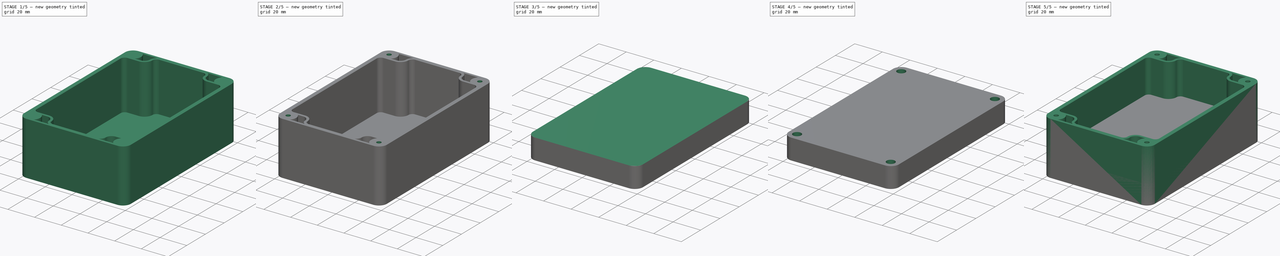
[diagram: build sequence overview — one tinted view per stage of 5, left to right]
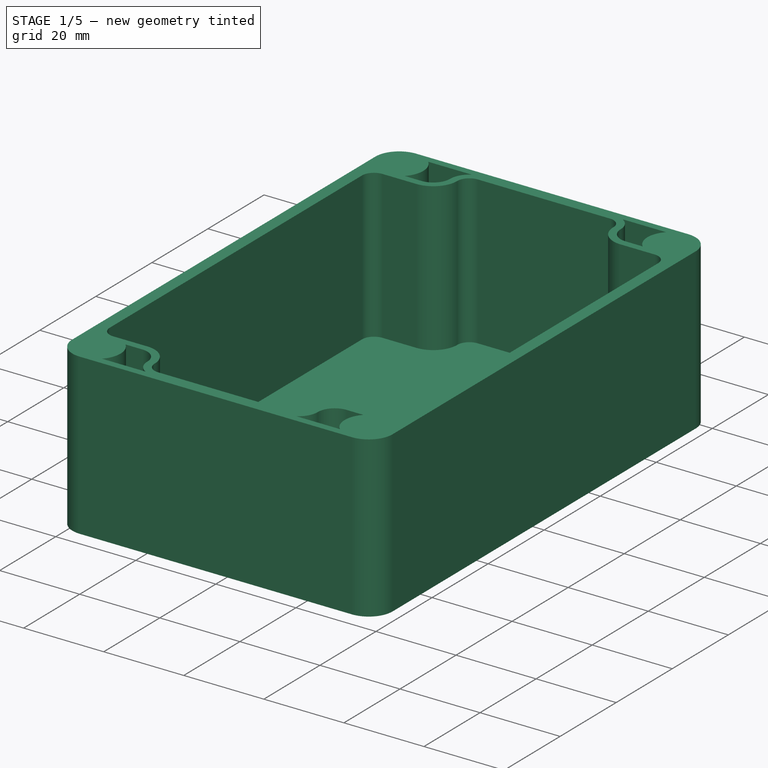
[diagram: stage 1 of 5 — iso view after this stage's code; geometry added in this stage tinted green]
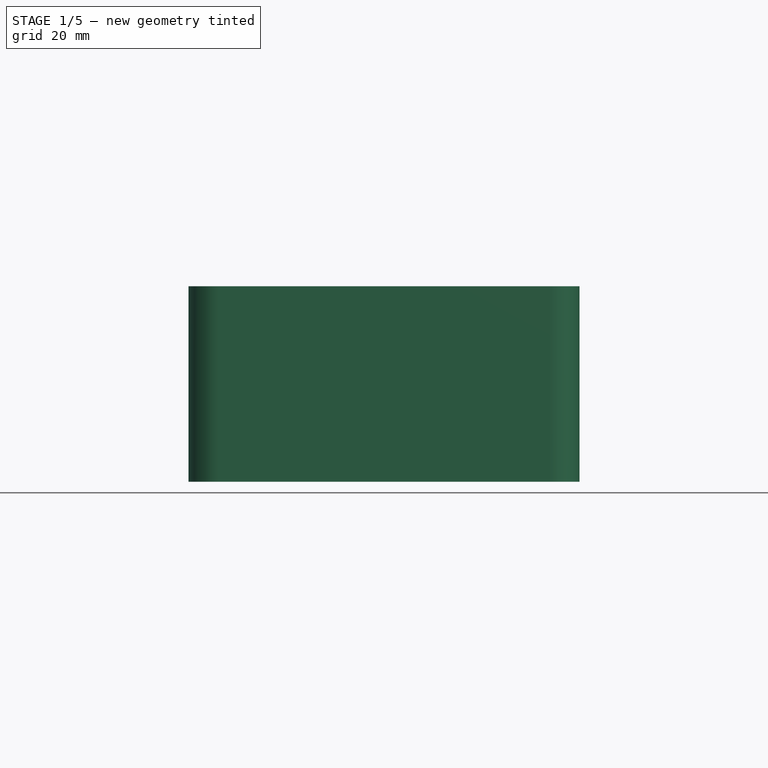
[diagram: stage 1 of 5 — front view after this stage's code; geometry added in this stage tinted green]
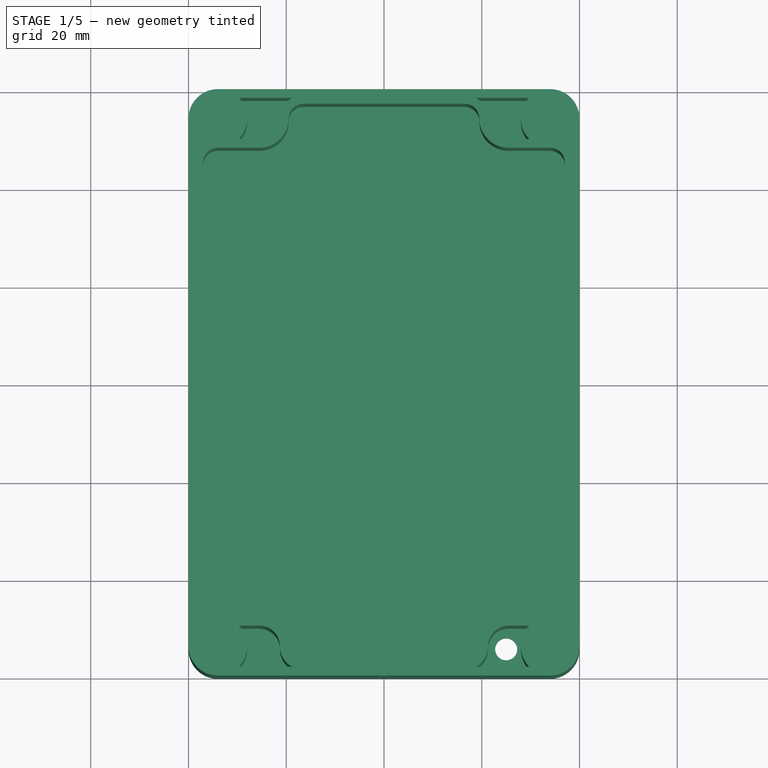
[diagram: stage 1 of 5 — top view after this stage's code; geometry added in this stage tinted green]
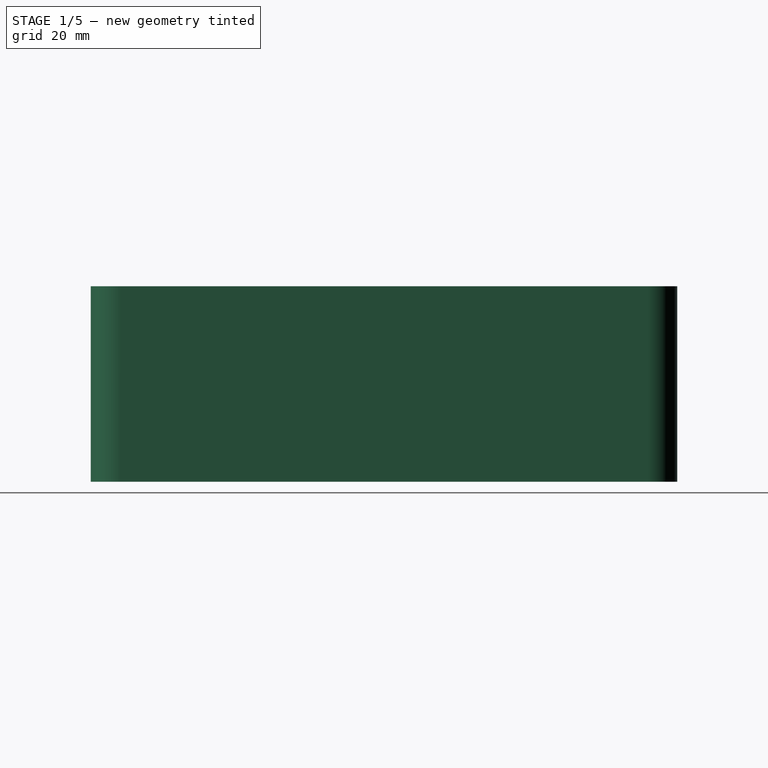
[diagram: stage 1 of 5 — right view after this stage's code; geometry added in this stage tinted green]
FCSTD DOCUMENT  (FreeCAD 0.18R4 (GitTag))
Label: RND_455_00135
License: All rights reserved
LicenseURL: http://en.wikipedia.org/wiki/All_rights_reserved
objects: PartDesign::Mirrored×22, Sketcher::SketchObject×16, PartDesign::MultiTransform×11, PartDesign::Pad×8, PartDesign::Pocket×6, PartDesign::Body×3, PartDesign::ShapeBinder×3, PartDesign::Fillet×2, PartDesign::Hole×2, Part::FeaturePython×1, App::Part×1
note: 90 computed .brp shape members not serialized (recipe doc carries the construction recipe); baked Part::Feature solids carry a one-line shape summary decoded from their .brp

FEATURE [Sketcher::SketchObject] Sketch001  label="SketchBaseCase"
  MapMode = 5
  Support = -> [XY_Plane001]
  sketch-geometry (4):
    g0: LineSegment StartX=-40 StartY=60 StartZ=0 EndX=40 EndY=60 EndZ=0
    g1: LineSegment StartX=40 StartY=60 StartZ=0 EndX=40 EndY=-60 EndZ=0
    g2: LineSegment StartX=40 StartY=-60 StartZ=0 EndX=-40 EndY=-60 EndZ=0
    g3: LineSegment StartX=-40 StartY=-60 StartZ=0 EndX=-40 EndY=60 EndZ=0
  constraints (10):
    c: Coincident(g0,g1)
    c: Coincident(g1,g2)
    c: Coincident(g2,g3)
    c: Coincident(g3,g0)
    c: Horizontal(g2)
    c: Vertical(g3)
    c: Symmetric(g0,g0,g-2)
    c: Symmetric(g0,g1,g-1)
    c: DistanceX(g0,g0) = 80
    c: DistanceY(g1,g1) = 120
FEATURE [PartDesign::Pad] Pad001  label="PadCaseHeight"
  Length = 40
  Length2 = 100
  Profile = -> Sketch001
  Type = 0
FEATURE [Sketcher::SketchObject] Sketch002  label="SketchInnerCase"
  ExternalGeometry = -> [Pad001]
  MapMode = 5
  Placement = pos=(0,0,40) rot=(0,0,1;0rad)
  Support = -> [Pad001]
  sketch-geometry (8):
    g0: LineSegment StartX=0 StartY=0 StartZ=0 EndX=0 EndY=57 EndZ=0
    g1: LineSegment StartX=0 StartY=57 StartZ=0 EndX=16.5 EndY=57 EndZ=0
    g2: ArcOfCircle CenterX=16.5 CenterY=54 CenterZ=0 NormalX=0 NormalY=0 NormalZ=1 AngleXU=0 Radius=3 StartAngle=3e-16 EndAngle=1.5708
    g3: ArcOfCircle CenterX=25.5 CenterY=54 CenterZ=0 NormalX=0 NormalY=0 NormalZ=1 AngleXU=0 Radius=6 StartAngle=3.14159 EndAngle=4.71239
    g4: LineSegment StartX=25.5 StartY=48 StartZ=0 EndX=34 EndY=48 EndZ=0
    g5: ArcOfCircle CenterX=34 CenterY=45 CenterZ=0 NormalX=0 NormalY=0 NormalZ=1 AngleXU=0 Radius=3 StartAngle=-9e-16 EndAngle=1.5708
    g6: LineSegment StartX=37 StartY=45 StartZ=0 EndX=37 EndY=0 EndZ=0
    g7: LineSegment StartX=37 StartY=0 StartZ=0 EndX=0 EndY=0 EndZ=0
  constraints (21):
    c: Coincident(g-1,g0)
    c: PointOnObject(g0,g-2)
    c: Coincident(g0,g1)
    c: Horizontal(g1)
    c: Tangent(g1,g2) = 1.5708
    c: Horizontal(g4)
    c: Tangent(g4,g5) = 1.5708
    c: Vertical(g6)
    c: Coincident(g6,g7)
    c: Coincident(g7,g0)
    c: Horizontal(g7)
    c: Tangent(g5,g6) = 1.5708
    c: Radius(g5) = 3
    c: DistanceY(g0,g-4) = 3
    c: DistanceX(g6,g-4) = 3
    c: DistanceY(g4,g-4) = 12
    c: Tangent(g3,g4) = -1.5708
    c: DistanceX(g0,g2) = 19.5
    c: Horizontal(g2,g3)
    c: Tangent(g2,g3) = 1.5708
    c: Radius(g3) = 6
FEATURE [PartDesign::Fillet] Fillet  label="FilletCaseEdges"
  Base = -> Pad001 [Edge2,Edge5,Edge8,Edge1]
  BaseFeature = -> Pad001
  Radius = 6
FEATURE [PartDesign::Pocket] Pocket  label="PocketInnerCase"
  BaseFeature = -> Fillet
  Length = 37
  Length2 = 100
  Profile = -> Sketch002
  Type = 0
FEATURE [Sketcher::SketchObject] Sketch  label="SketchMountingPocket"
  ExternalGeometry = -> [Pocket]
  MapMode = 5
  Placement = pos=(0,0,40) rot=(0,0,1;0rad)
  Support = -> [Pocket]
  sketch-geometry (9):
    g0: LineSegment [constr] StartX=34 StartY=60 StartZ=0 EndX=34 EndY=54 EndZ=0
    g1: LineSegment [constr] StartX=34 StartY=54 StartZ=0 EndX=40 EndY=54 EndZ=0
    g2: ArcOfCircle CenterX=34 CenterY=54 CenterZ=0 NormalX=0 NormalY=0 NormalZ=1 AngleXU=0 Radius=6 StartAngle=2.36578 EndAngle=3.91741
    g3: ArcOfCircle CenterX=25.5 CenterY=54 CenterZ=0 NormalX=0 NormalY=0 NormalZ=1 AngleXU=0 Radius=4.20178 StartAngle=3.14159 EndAngle=4.71239
    g4: LineSegment StartX=25.5 StartY=49.7982 StartZ=0 EndX=29.7169 EndY=49.7982 EndZ=0
    g5: ArcOfCircle CenterX=16.5 CenterY=54 CenterZ=0 NormalX=0 NormalY=0 NormalZ=1 AngleXU=0 Radius=4.79822 StartAngle=0 EndAngle=1.06687
    g6: LineSegment StartX=18.8169 StartY=58.2018 StartZ=0 EndX=29.7169 EndY=58.2018 EndZ=0
    g7: LineSegment [constr] StartX=34 StartY=54 StartZ=0 EndX=25 EndY=54 EndZ=0
    g8: Circle [constr] CenterX=25 CenterY=54 CenterZ=0 NormalX=0 NormalY=0 NormalZ=1 AngleXU=0 Radius=2.25
  constraints (24):
    c: Coincident(g0,g-3)
    c: Vertical(g0)
    c: Coincident(g1,g0)
    c: Coincident(g1,g-4)
    c: Horizontal(g1)
    c: Coincident(g2,g0)
    c: Equal(g2,g-6)
    c: Coincident(g3,g-8)
    c: Coincident(g4,g2)
    c: Horizontal(g4)
    c: Horizontal(g-8,g3)
    c: Coincident(g5,g-7)
    c: Coincident(g5,g3)
    c: Coincident(g6,g5)
    c: Coincident(g6,g2)
    c: Horizontal(g6)
    c: Vertical(g2,g2)
    c: Coincident(g7,g2)
    c: Horizontal(g7)
    c: DistanceX(g7,g1) = 15
    c: Coincident(g8,g7)
    c: Diameter(g8) = 4.5
    c: Tangent(g4,g3) = -1.5708
    c: DistanceX(g5,g2) = 10.9
FEATURE [PartDesign::Pocket] Pocket001  label="PocketMounting"
  BaseFeature = -> Pocket
  Length = 37
  Length2 = 100
  Profile = -> Sketch
  Type = 0
FEATURE [PartDesign::Mirrored] Mirrored
  MirrorPlane = -> Sketch002 [V_Axis]
FEATURE [PartDesign::Mirrored] Mirrored001
  MirrorPlane = -> Sketch002 [H_Axis]
FEATURE [PartDesign::MultiTransform] MultiTransform  label="MultiTransformMounting Pockets"
  BaseFeature = -> Pocket001
  Originals = -> [Pocket,Pocket001]
  Transformations = -> [Mirrored,Mirrored001]
FEATURE [Sketcher::SketchObject] Sketch003  label="SketchMountingHole"
  ExternalGeometry = -> [MultiTransform]
  MapMode = 5
  Placement = pos=(0,0,0) rot=(1,0,0;3.14159rad)
  Support = -> [MultiTransform]
  sketch-geometry (1):
    g0: Circle CenterX=25 CenterY=54 CenterZ=0 NormalX=0 NormalY=0 NormalZ=1 AngleXU=0 Radius=2.25
  constraints (3):
    c: Diameter(g0) = 4.5
    c: Horizontal(g0,g-3)
    c: DistanceX(g0,g-3) = 15
FEATURE [PartDesign::Pocket] Pocket002  label="PocketMountingHole"
  BaseFeature = -> MultiTransform
  Length = 5
  Length2 = 100
  Profile = -> Sketch003
  Type = 1
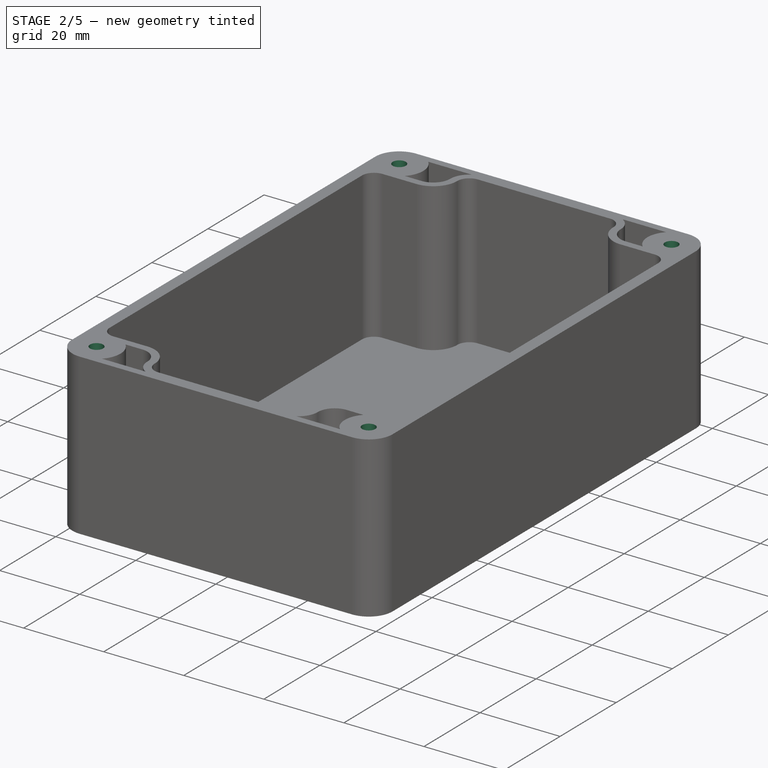
[diagram: stage 2 of 5 — iso view after this stage's code; geometry added in this stage tinted green]
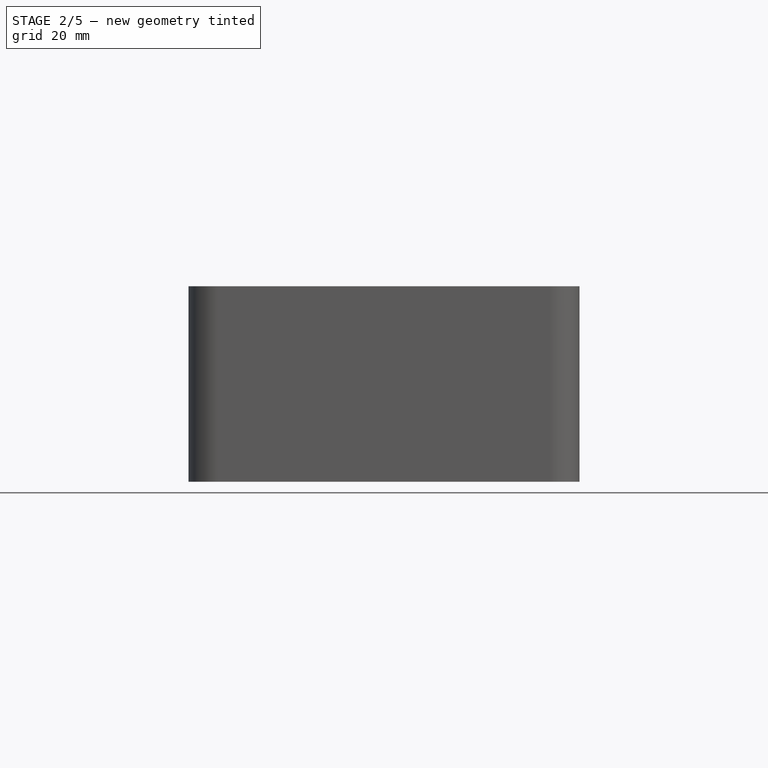
[diagram: stage 2 of 5 — front view after this stage's code; geometry added in this stage tinted green]
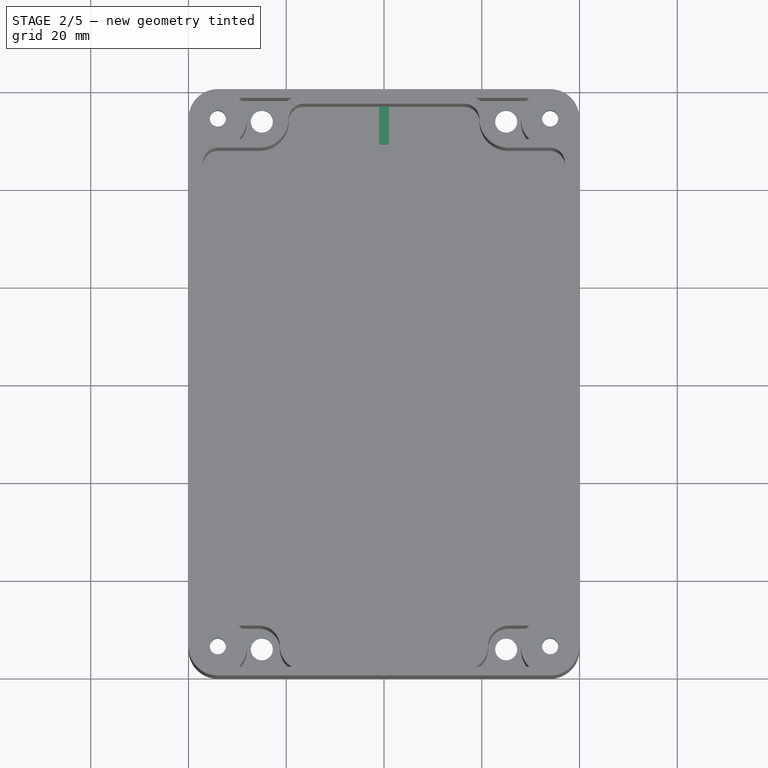
[diagram: stage 2 of 5 — top view after this stage's code; geometry added in this stage tinted green]
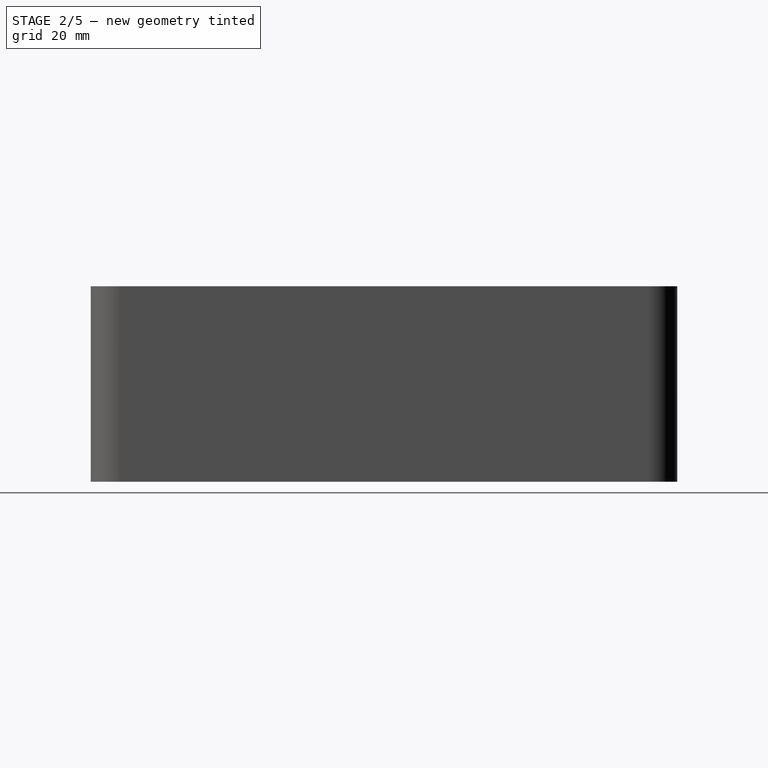
[diagram: stage 2 of 5 — right view after this stage's code; geometry added in this stage tinted green]
FEATURE [PartDesign::Mirrored] Mirrored002
  MirrorPlane = -> Sketch003 [V_Axis]
FEATURE [PartDesign::Mirrored] Mirrored003
  MirrorPlane = -> Sketch003 [H_Axis]
FEATURE [PartDesign::MultiTransform] MultiTransform001  label="MultiTransformMountingHoles"
  BaseFeature = -> Pocket002
  Originals = -> [Pocket002]
  Transformations = -> [Mirrored002,Mirrored003]
FEATURE [Sketcher::SketchObject] Sketch004  label="SketchCoverThread"
  ExternalGeometry = -> [MultiTransform001]
  MapMode = 5
  Placement = pos=(0,0,0) rot=(1,0,0;3.14159rad)
  Support = -> [MultiTransform001]
  sketch-geometry (1):
    g0: Circle CenterX=34 CenterY=54 CenterZ=0 NormalX=0 NormalY=0 NormalZ=1 AngleXU=0 Radius=4
  constraints (2):
    c: Coincident(g0,g-3)
    c: Diameter(g0) = 8
FEATURE [PartDesign::Hole] Hole  label="HoleCoverThread"
  BaseFeature = -> MultiTransform001
  Depth = 25
  DepthType = 1
  Diameter = 3.3
  DrillPoint = 0
  DrillPointAngle = 118
  HoleCutCountersinkAngle = 90
  HoleCutDepth = 0
  HoleCutDiameter = 4
  HoleCutType = 0
  ModelActualThread = false
  Profile = -> Sketch004
  Tapered = false
  TaperedAngle = 90
  ThreadAngle = 60
  ThreadClass = 0
  ThreadCutOffInner = 0.0757772
  ThreadCutOffOuter = 0.151554
  ThreadDirection = 0
  ThreadFit = 0
  ThreadPitch = 0.7
  ThreadSize = 5
  ThreadType = 1
  Threaded = true
FEATURE [PartDesign::Mirrored] Mirrored004
  MirrorPlane = -> Sketch004 [V_Axis]
FEATURE [PartDesign::Mirrored] Mirrored005
  MirrorPlane = -> Sketch004 [H_Axis]
FEATURE [PartDesign::MultiTransform] MultiTransform002  label="MultiTransformCoverThread"
  BaseFeature = -> Hole
  Originals = -> [Hole]
  Transformations = -> [Mirrored004,Mirrored005]
FEATURE [Sketcher::SketchObject] Sketch005  label="SketchCounterbore"
  ExternalGeometry = -> [MultiTransform002]
  MapMode = 5
  Placement = pos=(0,0,0) rot=(1,0,0;3.14159rad)
  Support = -> [MultiTransform002]
  sketch-geometry (1):
    g0: Circle CenterX=34 CenterY=54 CenterZ=0 NormalX=0 NormalY=0 NormalZ=1 AngleXU=0 Radius=4
  constraints (2):
    c: Coincident(g0,g-3)
    c: Diameter(g0) = 8
FEATURE [PartDesign::Pocket] Pocket003  label="PocketCounterbore"
  BaseFeature = -> MultiTransform002
  Length = 32
  Length2 = 100
  Profile = -> Sketch005
  Type = 0
FEATURE [PartDesign::Mirrored] Mirrored006
  MirrorPlane = -> Sketch005 [V_Axis]
FEATURE [PartDesign::Mirrored] Mirrored007
  MirrorPlane = -> Sketch005 [H_Axis]
FEATURE [PartDesign::MultiTransform] MultiTransform003  label="MultiTransformCounterbores"
  BaseFeature = -> Pocket003
  Originals = -> [Pocket003]
  Transformations = -> [Mirrored006,Mirrored007]
FEATURE [Sketcher::SketchObject] Sketch006  label="SketchFilletMountingPadTop"
  ExternalGeometry = -> [MultiTransform003]
  MapMode = 5
  Placement = pos=(0,0,3) rot=(0,0,1;0rad)
  Support = -> [MultiTransform003]
  sketch-geometry (4):
    g0: LineSegment StartX=-1 StartY=57 StartZ=0 EndX=1 EndY=57 EndZ=0
    g1: LineSegment StartX=1 StartY=57 StartZ=0 EndX=1 EndY=49.3 EndZ=0
    g2: LineSegment StartX=1 StartY=49.3 StartZ=0 EndX=-1 EndY=49.3 EndZ=0
    g3: LineSegment StartX=-1 StartY=49.3 StartZ=0 EndX=-1 EndY=57 EndZ=0
  constraints (11):
    c: Coincident(g0,g1)
    c: Coincident(g1,g2)
    c: Coincident(g2,g3)
    c: Coincident(g3,g0)
    c: Horizontal(g0)
    c: Vertical(g1)
    c: Vertical(g3)
    c: PointOnObject(g0,g-4)
    c: Symmetric(g1,g2,g-2)
    c: DistanceX(g2,g2) = 2
    c: DistanceY(g1,g1) = 7.7
FEATURE [PartDesign::Pad] Pad  label="PadFilletMountingPadTop"
  BaseFeature = -> MultiTransform003
  Length = 5
  Length2 = 100
  Profile = -> Sketch006
  Type = 0
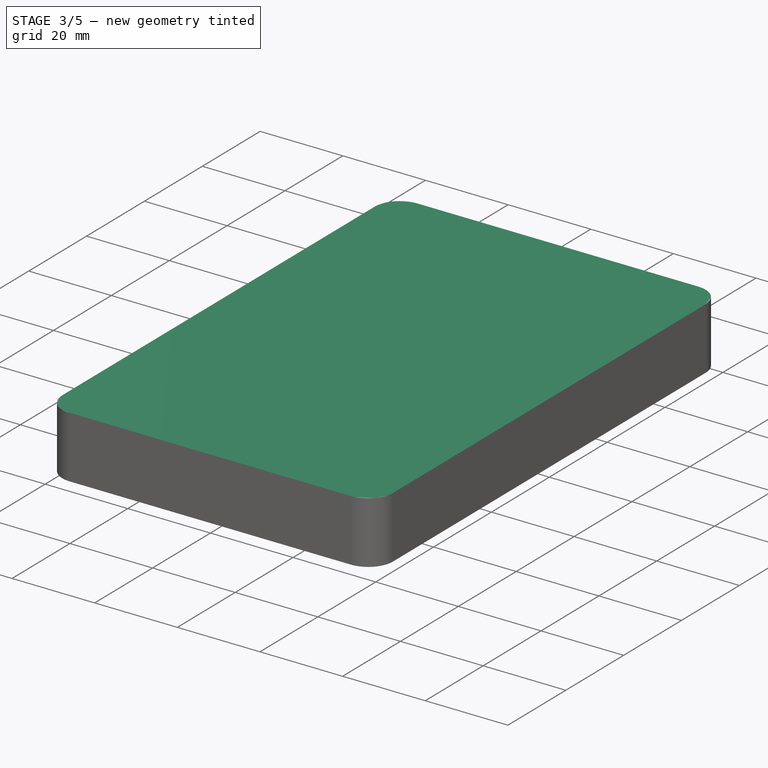
[diagram: stage 3 of 5 — iso view after this stage's code; geometry added in this stage tinted green]
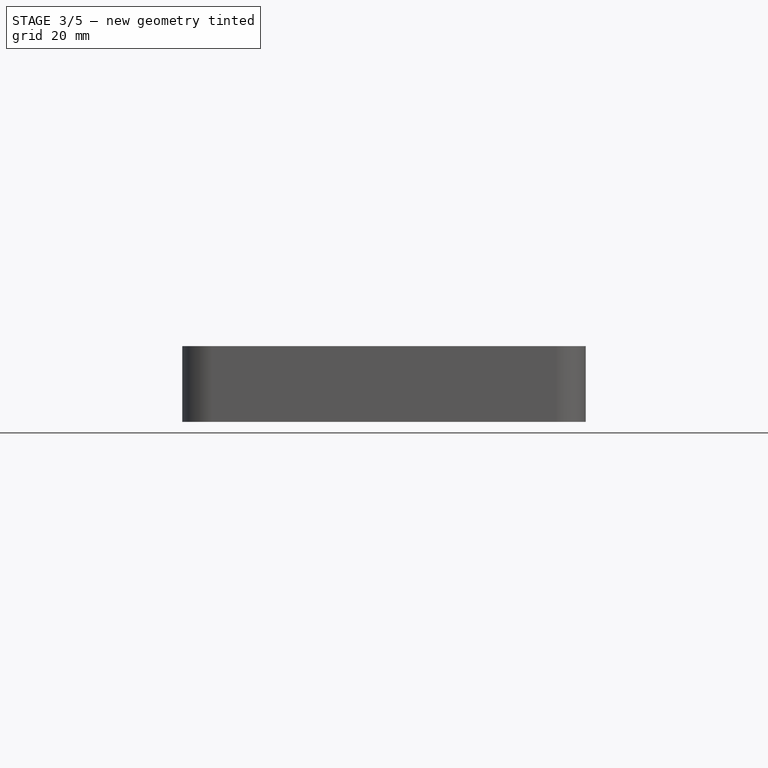
[diagram: stage 3 of 5 — front view after this stage's code; geometry added in this stage tinted green]
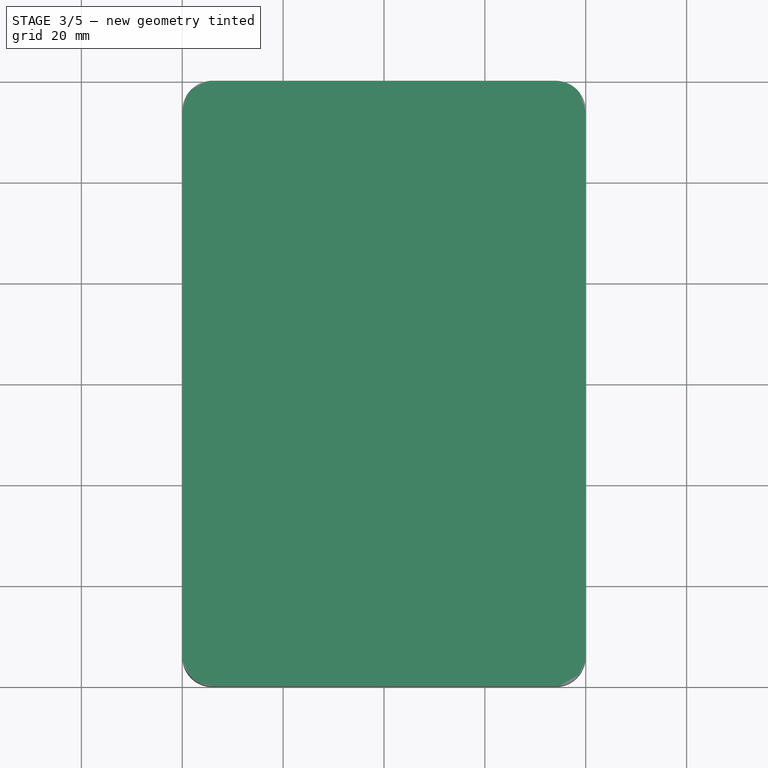
[diagram: stage 3 of 5 — top view after this stage's code; geometry added in this stage tinted green]
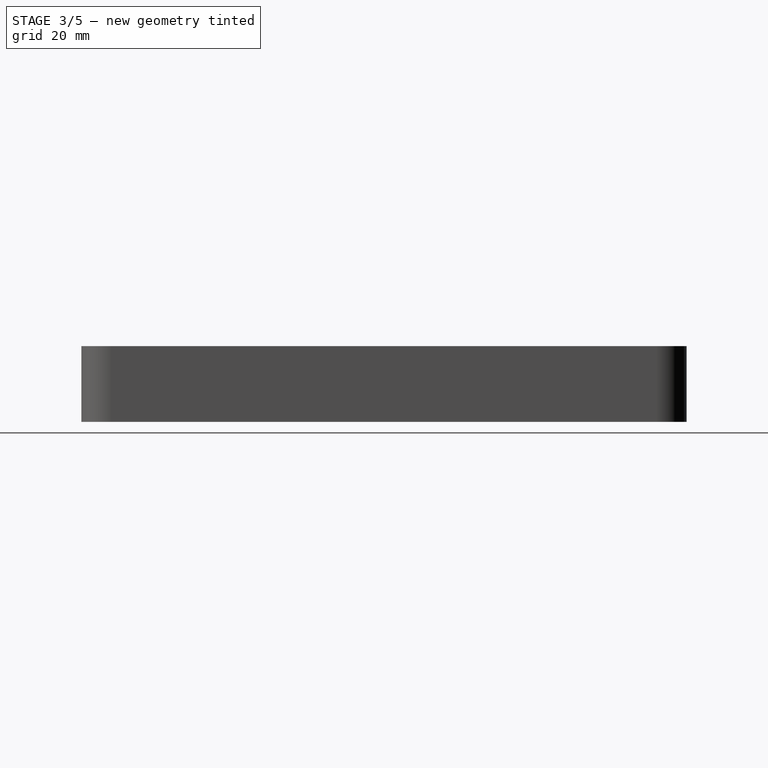
[diagram: stage 3 of 5 — right view after this stage's code; geometry added in this stage tinted green]
FEATURE [PartDesign::Mirrored] Mirrored008
  MirrorPlane = -> Sketch006 [H_Axis]
FEATURE [PartDesign::MultiTransform] MultiTransform004  label="MultiTransformMountingPadTop"
  BaseFeature = -> Pad
  Originals = -> [Pad]
  Transformations = -> [Mirrored008]
FEATURE [Sketcher::SketchObject] Sketch007  label="SketchFilletMountingPadSide"
  ExternalGeometry = -> [MultiTransform004]
  MapMode = 5
  Placement = pos=(0,0,3) rot=(0,0,1;0rad)
  Support = -> [MultiTransform004]
  sketch-geometry (4):
    g0: LineSegment StartX=37 StartY=19 StartZ=0 EndX=32 EndY=19 EndZ=0
    g1: LineSegment StartX=32 StartY=19 StartZ=0 EndX=32 EndY=21 EndZ=0
    g2: LineSegment StartX=32 StartY=21 StartZ=0 EndX=37 EndY=21 EndZ=0
    g3: LineSegment StartX=37 StartY=21 StartZ=0 EndX=37 EndY=19 EndZ=0
  constraints (12):
    c: Coincident(g0,g1)
    c: Coincident(g1,g2)
    c: Coincident(g2,g3)
    c: Coincident(g3,g0)
    c: Horizontal(g0)
    c: Horizontal(g2)
    c: Vertical(g1)
    c: Vertical(g3)
    c: PointOnObject(g0,g-3)
    c: DistanceY(g1,g1) = 2
    c: DistanceY(g-3,g0) = 19
    c: DistanceX(g-1,g0) = 32
FEATURE [PartDesign::Pad] Pad002  label="PadFilletMountingPadSide"
  BaseFeature = -> MultiTransform004
  Length = 5
  Length2 = 100
  Profile = -> Sketch007
  Type = 0
FEATURE [PartDesign::Mirrored] Mirrored009
  MirrorPlane = -> Sketch007 [V_Axis]
FEATURE [PartDesign::Mirrored] Mirrored010
  MirrorPlane = -> Sketch007 [H_Axis]
FEATURE [PartDesign::MultiTransform] MultiTransform005  label="MultiTransformFilletMountingPadSide"
  BaseFeature = -> Pad002
  Originals = -> [Pad002]
  Transformations = -> [Mirrored009,Mirrored010]
FEATURE [PartDesign::Body] Body001  label="BodyLowerCasing"
  Group = -> [Sketch001,Pad001,Sketch002,Fillet,Pocket,Sketch,Pocket001,MultiTransform,Mirrored,Mirrored001,Sketch003,Pocket002,MultiTransform001,Mirrored002,Mirrored003,Sketch004,Hole,MultiTransform002,Mirrored004,Mirrored005,Sketch005,Pocket003,MultiTransform003,Mirrored006,Mirrored007,Sketch006,Pad,MultiTransform004,Mirrored008,Sketch007,Pad002,MultiTransform005,Mirrored009,Mirrored010,Sketch008,Pad003,+11 more]
  Origin = -> Origin001
  Tip = -> Mirrored015
FEATURE [Sketcher::SketchObject] Sketch011
  MapMode = 5
  Support = -> [XY_Plane]
  sketch-geometry (4):
    g0: LineSegment StartX=-40 StartY=60 StartZ=0 EndX=40 EndY=60 EndZ=0
    g1: LineSegment StartX=40 StartY=60 StartZ=0 EndX=40 EndY=-60 EndZ=0
    g2: LineSegment StartX=40 StartY=-60 StartZ=0 EndX=-40 EndY=-60 EndZ=0
    g3: LineSegment StartX=-40 StartY=-60 StartZ=0 EndX=-40 EndY=60 EndZ=0
  constraints (10):
    c: Coincident(g0,g1)
    c: Coincident(g1,g2)
    c: Coincident(g2,g3)
    c: Coincident(g3,g0)
    c: Horizontal(g2)
    c: Vertical(g3)
    c: Symmetric(g0,g0,g-2)
    c: Symmetric(g0,g1,g-1)
    c: DistanceX(g0,g0) = 80
    c: DistanceY(g3,g3) = 120
FEATURE [PartDesign::Pad] Pad006
  Length = 15
  Length2 = 100
  Profile = -> Sketch011
  Type = 0
FEATURE [PartDesign::Fillet] Fillet001
  Base = -> Pad006 [Edge2,Edge5,Edge8,Edge1]
  BaseFeature = -> Pad006
  Radius = 6
FEATURE [PartDesign::Body] Body  label="BodyCover"
  Group = -> [Sketch011,Pad006,Fillet001,ShapeBinder,Sketch012,ShapeBinder001,Pocket004,MultiTransform008,Mirrored016,Mirrored017,Sketch013,Pocket005,MultiTransform009,Mirrored018,Mirrored019,Sketch014,Hole001,MultiTransform010,Mirrored020,Mirrored021]
  Origin = -> Origin
  Placement = pos=(0,0,40) rot=(0,0,1;0rad)
  Tip = -> MultiTransform010
FEATURE [PartDesign::ShapeBinder] CopyMirrored015  label="CopyMirroredMountingPadEdge"
  TraceSupport = false
FEATURE [Sketcher::SketchObject] Sketch015  label="SketchThreadInlnsert"
  ExternalGeometry = -> [CopyMirrored015]
  MapMode = 5
  Placement = pos=(0,0,3) rot=(0,0,1;0rad)
  Support = -> [CopyMirrored015]
  expr: Constraints[3] = SketchMountingPadEdge.Constraints[62]
  sketch-geometry (2):
    g0: Circle CenterX=29 CenterY=40.85 CenterZ=0 NormalX=0 NormalY=0 NormalZ=1 AngleXU=0 Radius=2.5
    g1: Circle CenterX=29 CenterY=40.85 CenterZ=0 NormalX=0 NormalY=0 NormalZ=1 AngleXU=0 Radius=1.65
  constraints (4):
    c: Coincident(g0,g-3)
    c: Coincident(g1,g0)
    c: Diameter(g1) = 3.3
    c: Diameter(g0) = 5
FEATURE [PartDesign::Pad] Pad007  label="PadThreadInlnsert"
  Length = 6.5
  Length2 = 100
  Profile = -> Sketch015
  Type = 0
FEATURE [PartDesign::Body] Body002  label="BodyThreadInsert"
  Group = -> [CopyMirrored015,Sketch015,Pad007]
  Origin = -> Origin004
  Tip = -> Pad007
FEATURE [Part::FeaturePython] Array  label="ArrayThreadInlnsert"  # Draft array (typed FeaturePython)
  Angle = 360
  ArrayType = 0
  Axis = (0,0,1)
  Base = -> Body002
  Center = (0,0,0)
  Fuse = false
  IntervalAxis = (0,0,0)
  IntervalX = (-58,0,0)
  IntervalY = (0,-81.7,0)
  IntervalZ = (0,0,1)
  NumberPolar = 1
  NumberX = 2
  NumberY = 2
  NumberZ = 1
FEATURE [App::Part] Part  label="RND_455_00135"
  Group = -> [Body001,Body,Body002,Array]
  Origin = -> Origin003
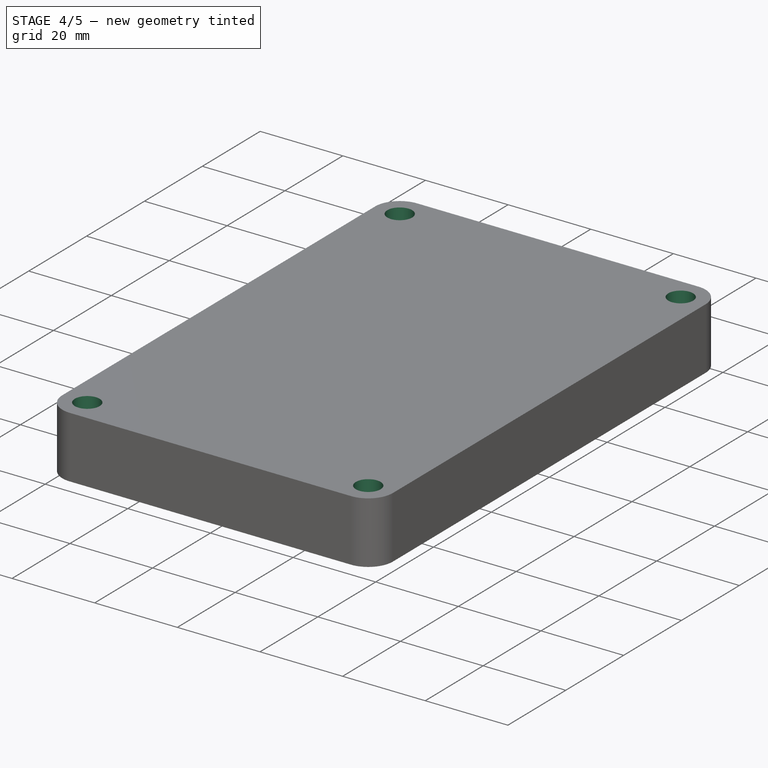
[diagram: stage 4 of 5 — iso view after this stage's code; geometry added in this stage tinted green]
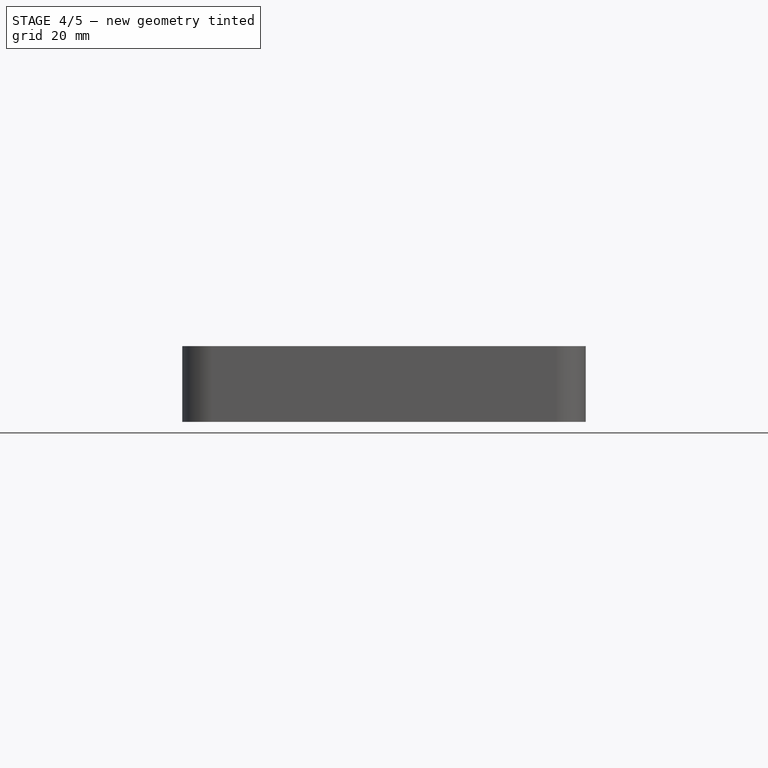
[diagram: stage 4 of 5 — front view after this stage's code; geometry added in this stage tinted green]
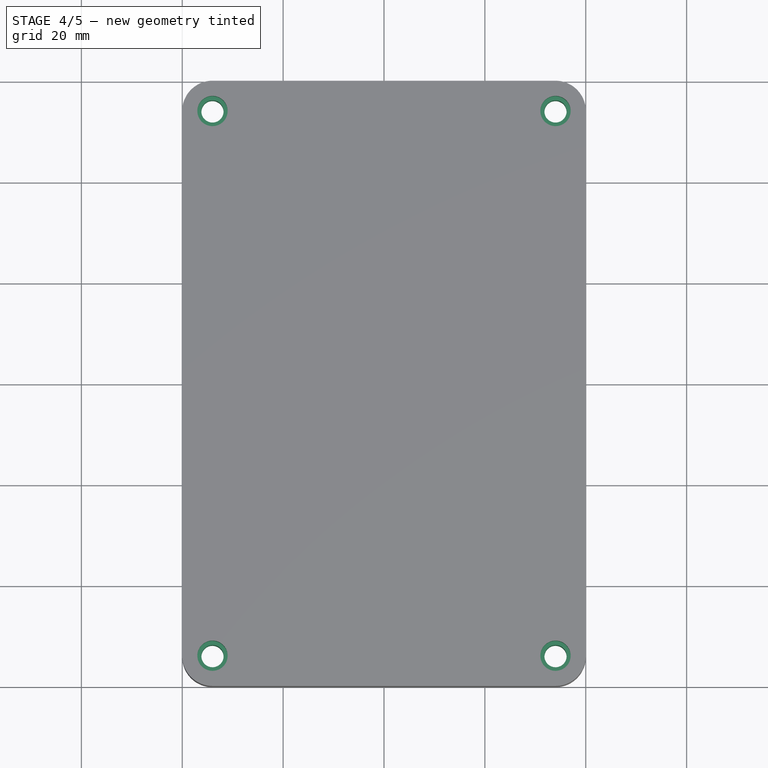
[diagram: stage 4 of 5 — top view after this stage's code; geometry added in this stage tinted green]
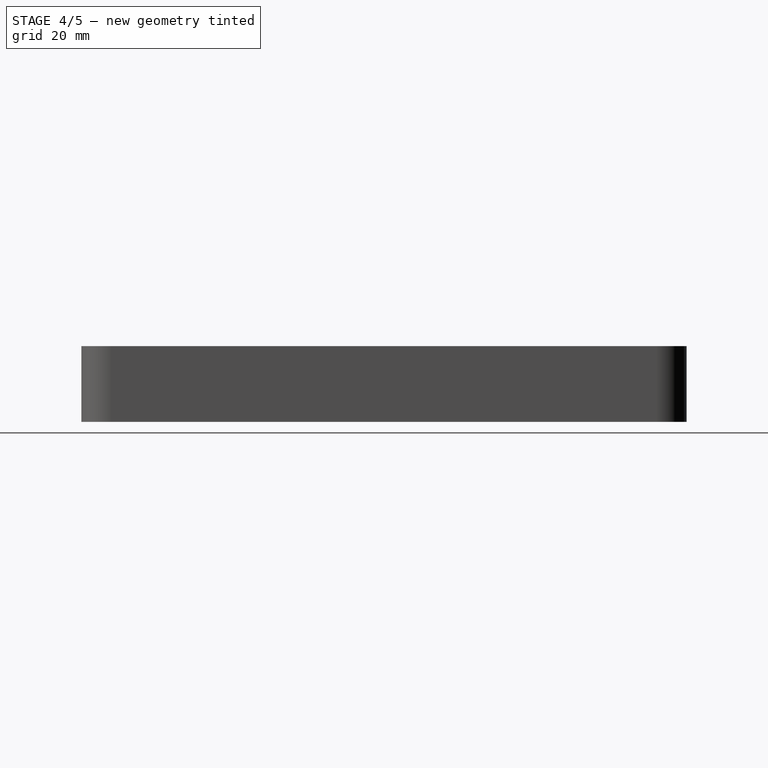
[diagram: stage 4 of 5 — right view after this stage's code; geometry added in this stage tinted green]
FEATURE [PartDesign::ShapeBinder] ShapeBinder
  Placement = pos=(0,0,40) rot=(0,0,1;0rad)
  Support = -> [Sketch002]
  TraceSupport = false
FEATURE [Sketcher::SketchObject] Sketch012  label="SketchInnerCover"
  ExternalGeometry = -> [ShapeBinder]
  MapMode = 5
  Placement = pos=(0,0,0) rot=(1,0,0;3.14159rad)
  Support = -> [Fillet001]
  sketch-geometry (8):
    g0: LineSegment StartX=0 StartY=0 StartZ=0 EndX=35 EndY=0 EndZ=0
    g1: LineSegment StartX=35 StartY=0 StartZ=0 EndX=35 EndY=-45 EndZ=0
    g2: ArcOfCircle CenterX=34 CenterY=-45 CenterZ=0 NormalX=0 NormalY=0 NormalZ=1 AngleXU=0 Radius=1 StartAngle=4.71239 EndAngle=6.28319
    g3: LineSegment StartX=34 StartY=-46 StartZ=0 EndX=25.5 EndY=-46 EndZ=0
    g4: ArcOfCircle CenterX=25.5 CenterY=-54 CenterZ=0 NormalX=0 NormalY=0 NormalZ=1 AngleXU=0 Radius=8 StartAngle=1.5708 EndAngle=3.14159
    g5: ArcOfCircle CenterX=16.5 CenterY=-54 CenterZ=0 NormalX=0 NormalY=0 NormalZ=1 AngleXU=0 Radius=1 StartAngle=4.71239 EndAngle=6.28319
    g6: LineSegment StartX=16.5 StartY=-55 StartZ=0 EndX=0 EndY=-55 EndZ=0
    g7: LineSegment StartX=0 StartY=-55 StartZ=0 EndX=0 EndY=0 EndZ=0
  constraints (18):
    c: Coincident(g-1,g0)
    c: PointOnObject(g0,g-1)
    c: Coincident(g0,g1)
    c: Vertical(g1)
    c: DistanceX(g0,g-3) = 2
    c: Tangent(g1,g2) = 1.5708
    c: Coincident(g2,g-4)
    c: Vertical(g2,g-5)
    c: Tangent(g2,g3) = 1.5708
    c: Tangent(g3,g4) = -1.5708
    c: Coincident(g-6,g4)
    c: Tangent(g4,g5) = 1.5708
    c: Tangent(g5,g6) = 1.5708
    c: Coincident(g6,g7)
    c: Coincident(g7,g0)
    c: PointOnObject(g6,g-2)
    c: Coincident(g5,g-8)
    c: Horizontal(g6)
FEATURE [PartDesign::ShapeBinder] ShapeBinder001
  Placement = pos=(0,0,40) rot=(0,0,1;0rad)
  Support = -> [Sketch]
  TraceSupport = false
FEATURE [PartDesign::Pocket] Pocket004  label="PocketInnerCover"
  BaseFeature = -> Fillet001
  Length = 11.4
  Length2 = 100
  Profile = -> Sketch012
  Type = 0
FEATURE [PartDesign::Mirrored] Mirrored016
  MirrorPlane = -> Sketch012 [V_Axis]
FEATURE [PartDesign::Mirrored] Mirrored017
  MirrorPlane = -> Sketch012 [H_Axis]
FEATURE [PartDesign::MultiTransform] MultiTransform008  label="MultiTransformInnerCover"
  BaseFeature = -> Pocket004
  Originals = -> [Pocket004]
  Transformations = -> [Mirrored016,Mirrored017]
FEATURE [Sketcher::SketchObject] Sketch013  label="SketchMountingPocketCover"
  ExternalGeometry = -> [ShapeBinder001,ShapeBinder]
  MapMode = 5
  Placement = pos=(0,0,0) rot=(1,0,0;3.14159rad)
  Support = -> [MultiTransform008]
  sketch-geometry (5):
    g0: ArcOfCircle CenterX=34 CenterY=-54 CenterZ=0 NormalX=0 NormalY=0 NormalZ=1 AngleXU=0 Radius=6 StartAngle=2.57871 EndAngle=3.91741
    g1: LineSegment StartX=28.9257 StartY=-50.7982 StartZ=0 EndX=25.5 EndY=-50.7982 EndZ=0
    g2: ArcOfCircle CenterX=25.5 CenterY=-54 CenterZ=0 NormalX=0 NormalY=0 NormalZ=1 AngleXU=0 Radius=3.20178 StartAngle=1.5708 EndAngle=3.14159
    g3: ArcOfCircle CenterX=16.5 CenterY=-54 CenterZ=0 NormalX=0 NormalY=0 NormalZ=1 AngleXU=0 Radius=5.79822 StartAngle=5.47263 EndAngle=6.28319
    g4: LineSegment StartX=20.4955 StartY=-58.2018 StartZ=0 EndX=29.7169 EndY=-58.2018 EndZ=0
  constraints (12):
    c: Coincident(g0,g-4)
    c: Coincident(g0,g-4)
    c: Coincident(g0,g1)
    c: Tangent(g1,g2) = -1.5708
    c: Tangent(g2,g3) = 1.5708
    c: PointOnObject(g3,g-3)
    c: Coincident(g3,g4)
    c: Coincident(g2,g-5)
    c: Coincident(g-7,g3)
    c: Horizontal(g1)
    c: DistanceY(g0,g-8) = 1
    c: Coincident(g0,g4)
FEATURE [PartDesign::Pocket] Pocket005  label="PocketMountingPocketCover"
  BaseFeature = -> MultiTransform008
  Length = 11.4
  Length2 = 100
  Profile = -> Sketch013
  Type = 0
FEATURE [PartDesign::Mirrored] Mirrored018
  MirrorPlane = -> Sketch013 [V_Axis]
FEATURE [PartDesign::Mirrored] Mirrored019
  MirrorPlane = -> Sketch013 [H_Axis]
FEATURE [PartDesign::MultiTransform] MultiTransform009
  BaseFeature = -> Pocket005
  Originals = -> [Pocket005]
  Transformations = -> [Mirrored018,Mirrored019]
FEATURE [Sketcher::SketchObject] Sketch014  label="SketchM4HoleCover"
  ExternalGeometry = -> [MultiTransform009]
  MapMode = 5
  Placement = pos=(0,0,15) rot=(0,0,1;0rad)
  Support = -> [MultiTransform009]
  sketch-geometry (1):
    g0: Circle CenterX=34 CenterY=54 CenterZ=0 NormalX=0 NormalY=0 NormalZ=1 AngleXU=0 Radius=4
  constraints (2):
    c: Coincident(g0,g-4)
    c: Diameter(g0) = 8
FEATURE [PartDesign::Hole] Hole001  label="HoleM4Cover"
  BaseFeature = -> MultiTransform009
  Depth = 25
  DepthType = 1
  Diameter = 4.4
  DrillPoint = 1
  DrillPointAngle = 118
  HoleCutCountersinkAngle = 90
  HoleCutDepth = 5
  HoleCutDiameter = 6
  HoleCutType = 5
  ModelActualThread = false
  Profile = -> Sketch014
  Tapered = false
  TaperedAngle = 90
  ThreadAngle = 0
  ThreadClass = 0
  ThreadCutOffInner = 0
  ThreadCutOffOuter = 0
  ThreadDirection = 0
  ThreadFit = 0
  ThreadPitch = 0
  ThreadSize = 5
  ThreadType = 1
  Threaded = false
FEATURE [PartDesign::Mirrored] Mirrored020
  MirrorPlane = -> Sketch014 [V_Axis]
FEATURE [PartDesign::Mirrored] Mirrored021
  MirrorPlane = -> Sketch014 [H_Axis]
FEATURE [PartDesign::MultiTransform] MultiTransform010  label="MultiTransformM4HolesCover"
  BaseFeature = -> Hole001
  Originals = -> [Hole001]
  Transformations = -> [Mirrored020,Mirrored021]
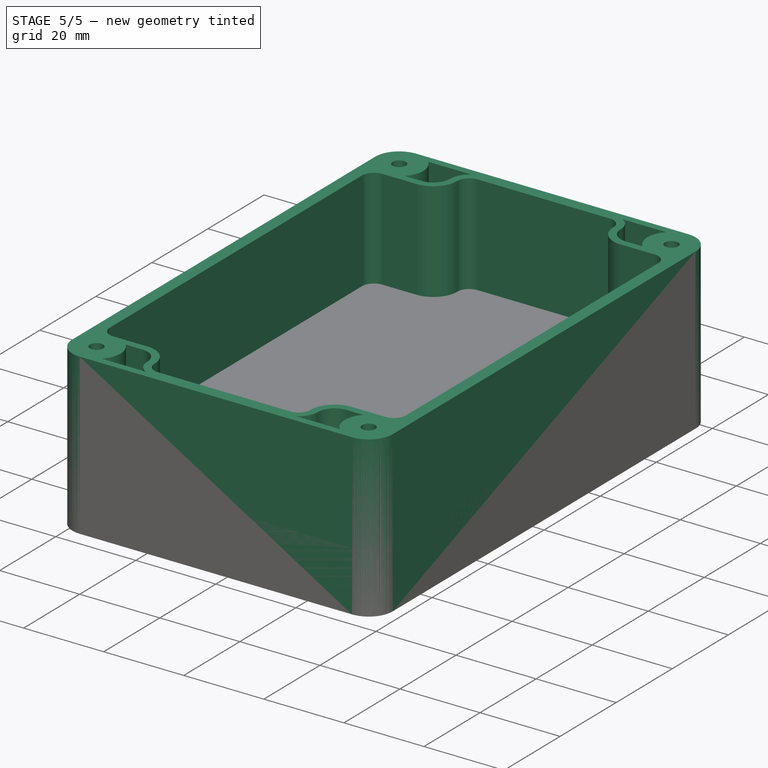
[diagram: stage 5 of 5 — iso view after this stage's code; geometry added in this stage tinted green]
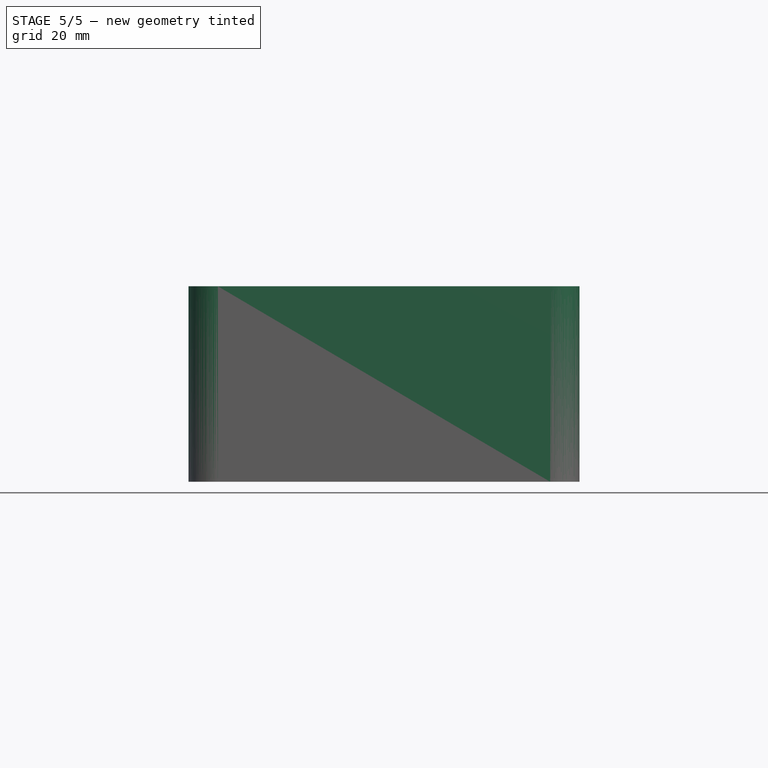
[diagram: stage 5 of 5 — front view after this stage's code; geometry added in this stage tinted green]
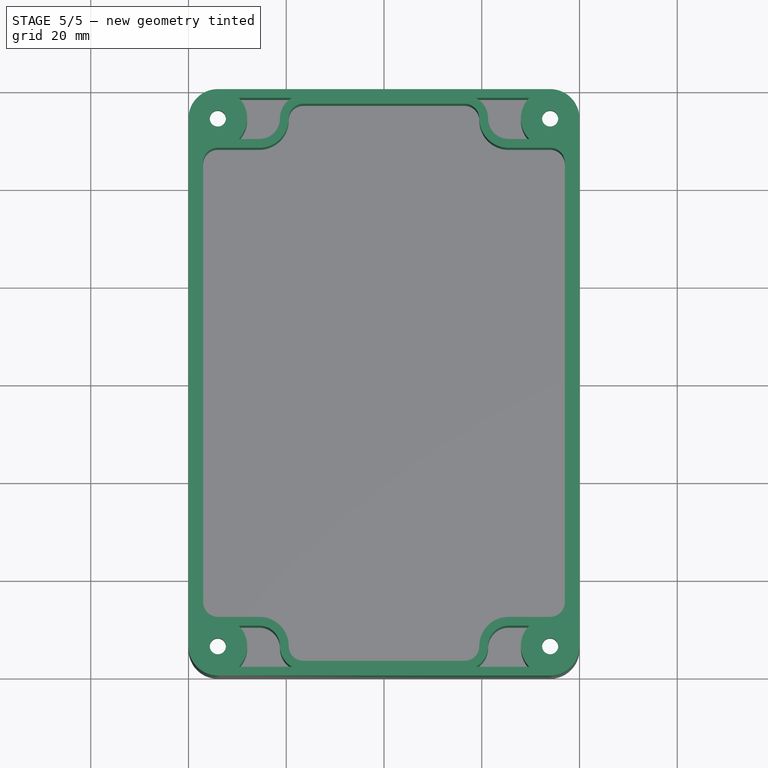
[diagram: stage 5 of 5 — top view after this stage's code; geometry added in this stage tinted green]
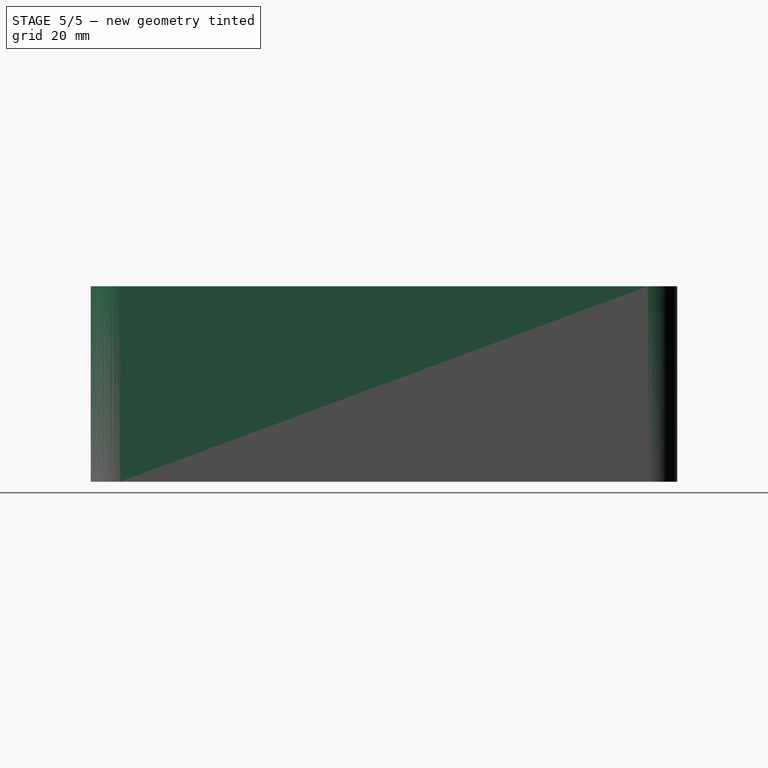
[diagram: stage 5 of 5 — right view after this stage's code; geometry added in this stage tinted green]
FEATURE [Sketcher::SketchObject] Sketch008  label="SketchMountingPadEdge"
  ExternalGeometry = -> [MultiTransform005]
  MapMode = 5
  Placement = pos=(0,0,3) rot=(0,0,1;0rad)
  Support = -> [MultiTransform005]
  sketch-geometry (21):
    g0: Circle [constr] CenterX=29 CenterY=40.85 CenterZ=0 NormalX=0 NormalY=0 NormalZ=1 AngleXU=0 Radius=5.75
    g1: ArcOfCircle CenterX=29 CenterY=40.85 CenterZ=0 NormalX=0 NormalY=0 NormalZ=1 AngleXU=0 Radius=5.75 StartAngle=1.365 EndAngle=1.77659
    g2: ArcOfCircle [constr] CenterX=29 CenterY=40.85 CenterZ=0 NormalX=0 NormalY=0 NormalZ=1 AngleXU=0 Radius=5.75 StartAngle=6.07739 EndAngle=6.48898
    g3: ArcOfCircle CenterX=29 CenterY=40.85 CenterZ=0 NormalX=0 NormalY=0 NormalZ=1 AngleXU=0 Radius=5.75 StartAngle=4.50659 EndAngle=4.91819
    g4: ArcOfCircle CenterX=29 CenterY=40.85 CenterZ=0 NormalX=0 NormalY=0 NormalZ=1 AngleXU=0 Radius=5.75 StartAngle=2.9358 EndAngle=3.34739
    g5: LineSegment [constr] StartX=22 StartY=40.85 StartZ=0 EndX=36 EndY=40.85 EndZ=0
    g6: LineSegment [constr] StartX=29 StartY=47.85 StartZ=0 EndX=29 EndY=33.85 EndZ=0
    g7: ArcOfCircle CenterX=29 CenterY=40.85 CenterZ=0 NormalX=0 NormalY=0 NormalZ=1 AngleXU=0 Radius=4 StartAngle=1.86894 EndAngle=2.84345
    g8: LineSegment StartX=23.3713 StartY=42.025 StartZ=0 EndX=25.1765 EndY=42.025 EndZ=0
    g9: LineSegment StartX=23.3713 StartY=39.675 StartZ=0 EndX=25.1765 EndY=39.675 EndZ=0
    g10: LineSegment StartX=27.825 StartY=46.4787 StartZ=0 EndX=27.825 EndY=44.6735 EndZ=0
    g11: LineSegment StartX=30.175 StartY=46.4787 StartZ=0 EndX=30.175 EndY=44.6735 EndZ=0
    g12: LineSegment StartX=34.6287 StartY=42.025 StartZ=0 EndX=32.8235 EndY=42.025 EndZ=0
    g13: LineSegment StartX=34.6287 StartY=39.675 StartZ=0 EndX=32.8235 EndY=39.675 EndZ=0
    g14: ArcOfCircle CenterX=29 CenterY=40.85 CenterZ=0 NormalX=0 NormalY=0 NormalZ=1 AngleXU=0 Radius=4 StartAngle=0.298148 EndAngle=1.27265
    g15: ArcOfCircle CenterX=29 CenterY=40.85 CenterZ=0 NormalX=0 NormalY=0 NormalZ=1 AngleXU=0 Radius=4 StartAngle=3.43974 EndAngle=4.41424
    g16: LineSegment StartX=27.825 StartY=35.2213 StartZ=0 EndX=27.825 EndY=37.0265 EndZ=0
    g17: LineSegment StartX=30.175 StartY=35.2213 StartZ=0 EndX=30.175 EndY=37.0265 EndZ=0
    g18: ArcOfCircle CenterX=29 CenterY=40.85 CenterZ=0 NormalX=0 NormalY=0 NormalZ=1 AngleXU=0 Radius=5.75 StartAngle=6.07739 EndAngle=6.48898
    g19: ArcOfCircle CenterX=29 CenterY=40.85 CenterZ=0 NormalX=0 NormalY=0 NormalZ=1 AngleXU=0 Radius=4 StartAngle=5.01054 EndAngle=5.98504
    g20: Circle CenterX=29 CenterY=40.85 CenterZ=0 NormalX=0 NormalY=0 NormalZ=1 AngleXU=0 Radius=2.5
  constraints (63):
    c: Diameter(g0) = 11.5
    c: DistanceX(g-1,g0) = 29
    c: DistanceY(g-1,g0) = 40.85
    c: Coincident(g1,g0)
    c: PointOnObject(g1,g0)
    c: Coincident(g2,g1)
    c: PointOnObject(g2,g0)
    c: Coincident(g3,g1)
    c: PointOnObject(g3,g0)
    c: Coincident(g4,g1)
    c: PointOnObject(g4,g0)
    c: DistanceX(g1,g1) = 2.35
    c: Horizontal(g5)
    c: Symmetric(g1,g1,g6)
    c: Symmetric(g3,g3,g6)
    c: Symmetric(g2,g2,g5)
    c: Symmetric(g4,g4,g5)
    c: Equal(g5,g6)
    c: Symmetric(g5,g5,g6)
    c: Symmetric(g6,g6,g5)
    c: DistanceY(g2,g2) = 2.35
    c: DistanceX(g3,g3) = 2.35
    c: DistanceY(g4,g4) = 2.35
    c: DistanceX(g5,g5) = 14
    c: Coincident(g7,g1)
    c: Diameter(g7) = 8
    c: Coincident(g8,g4)
    c: Horizontal(g8)
    c: Coincident(g9,g4)
    c: PointOnObject(g9,g7)
    c: Horizontal(g9)
    c: Coincident(g10,g1)
    c: Vertical(g10)
    c: Coincident(g11,g1)
    c: Vertical(g11)
    c: Coincident(g12,g2)
    c: Horizontal(g12)
    c: Coincident(g13,g2)
    c: Horizontal(g13)
    c: Coincident(g7,g10)
    c: Equal(g7,g14)
    c: Coincident(g14,g12)
    c: Coincident(g7,g14)
    c: Coincident(g19,g13)
    c: Equal(g7,g15)
    c: Coincident(g7,g8)
    c: Coincident(g7,g15)
    c: PointOnObject(g15,g9)
    c: Coincident(g16,g3)
    c: Vertical(g16)
    c: Coincident(g17,g3)
    c: PointOnObject(g17,g15)
    c: Vertical(g17)
    c: Coincident(g11,g14)
    c: Coincident(g18,g1)
    c: Coincident(g18,g12)
    c: Coincident(g18,g13)
    c: Equal(g15,g19)
    c: Coincident(g15,g16)
    c: Coincident(g15,g19)
    c: PointOnObject(g19,g17)
    c: Coincident(g20,g1)
    c: Diameter(g20) = 5
FEATURE [PartDesign::Pad] Pad003  label="PadMountingPadEdge"
  BaseFeature = -> MultiTransform005
  Length = 6.5
  Length2 = 100
  Profile = -> Sketch008
  Type = 0
FEATURE [PartDesign::Mirrored] Mirrored011
  MirrorPlane = -> Sketch008 [V_Axis]
FEATURE [PartDesign::Mirrored] Mirrored012
  MirrorPlane = -> Sketch008 [H_Axis]
FEATURE [PartDesign::MultiTransform] MultiTransform006  label="MultiTransformMountingPadsEdge"
  BaseFeature = -> Pad003
  Originals = -> [Pad003]
  Transformations = -> [Mirrored011,Mirrored012]
FEATURE [Sketcher::SketchObject] Sketch009  label="SketchMountingPadSide"
  ExternalGeometry = -> [MultiTransform006]
  MapMode = 5
  Placement = pos=(0,0,3) rot=(0,0,1;0rad)
  Support = -> [MultiTransform006]
  sketch-geometry (2):
    g0: Circle CenterX=29 CenterY=20 CenterZ=0 NormalX=0 NormalY=0 NormalZ=1 AngleXU=0 Radius=4
    g1: Circle CenterX=29 CenterY=20 CenterZ=0 NormalX=0 NormalY=0 NormalZ=1 AngleXU=0 Radius=1.25
  constraints (5):
    c: Diameter(g0) = 8
    c: DistanceY(g-4,g0) = 20
    c: Coincident(g1,g0)
    c: Diameter(g1) = 2.5
    c: DistanceX(g-1,g0) = 29
FEATURE [PartDesign::Pad] Pad004  label="PadMountingPadSide"
  BaseFeature = -> MultiTransform006
  Length = 6.5
  Length2 = 100
  Profile = -> Sketch009
  Type = 0
FEATURE [PartDesign::Mirrored] Mirrored013
  MirrorPlane = -> Sketch009 [V_Axis]
FEATURE [PartDesign::Mirrored] Mirrored014
  MirrorPlane = -> Sketch009 [H_Axis]
FEATURE [PartDesign::MultiTransform] MultiTransform007  label="MultiTransformMountingPadsSide"
  BaseFeature = -> Pad004
  Originals = -> [Pad004]
  Transformations = -> [Mirrored013,Mirrored014]
FEATURE [Sketcher::SketchObject] Sketch010  label="SketchMountingPadTop"
  MapMode = 5
  Placement = pos=(0,0,3) rot=(0,0,1;0rad)
  Support = -> [MultiTransform007]
  sketch-geometry (2):
    g0: Circle CenterX=0 CenterY=48 CenterZ=0 NormalX=0 NormalY=0 NormalZ=1 AngleXU=0 Radius=4
    g1: Circle CenterX=0 CenterY=48 CenterZ=0 NormalX=0 NormalY=0 NormalZ=1 AngleXU=0 Radius=1.25
  constraints (5):
    c: PointOnObject(g0,g-2)
    c: DistanceY(g-1,g0) = 48
    c: Diameter(g0) = 8
    c: Coincident(g1,g0)
    c: Diameter(g1) = 2.5
FEATURE [PartDesign::Pad] Pad005  label="PadMountingPadTop"
  BaseFeature = -> MultiTransform007
  Length = 6.5
  Length2 = 100
  Profile = -> Sketch010
  Type = 0
FEATURE [PartDesign::Mirrored] Mirrored015  label="MirroredMountingPadBottom"
  BaseFeature = -> Pad005
  MirrorPlane = -> Sketch010 [H_Axis]
  Originals = -> [Pad005]
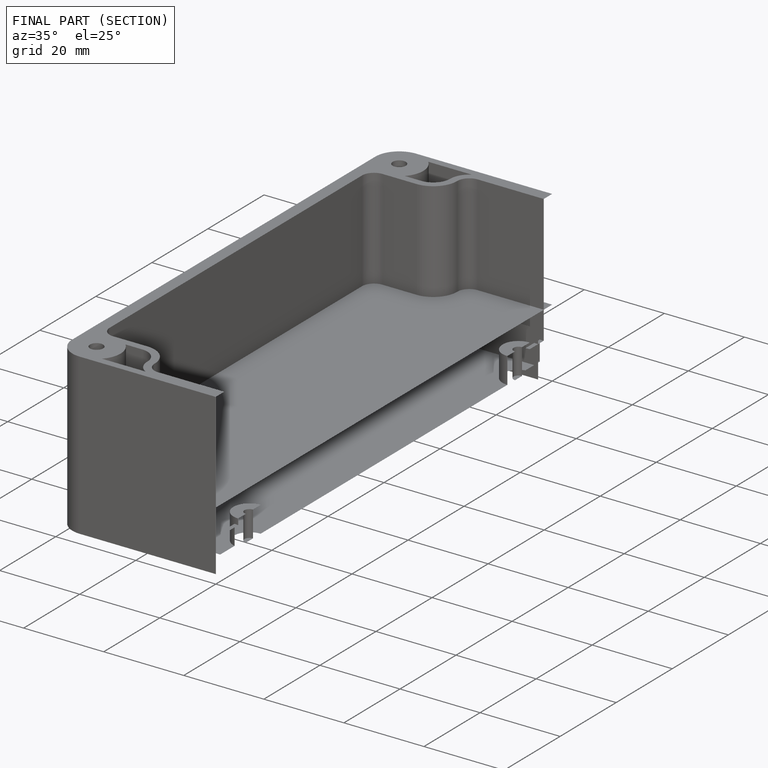
[diagram: finished part — half-section view (interior)]
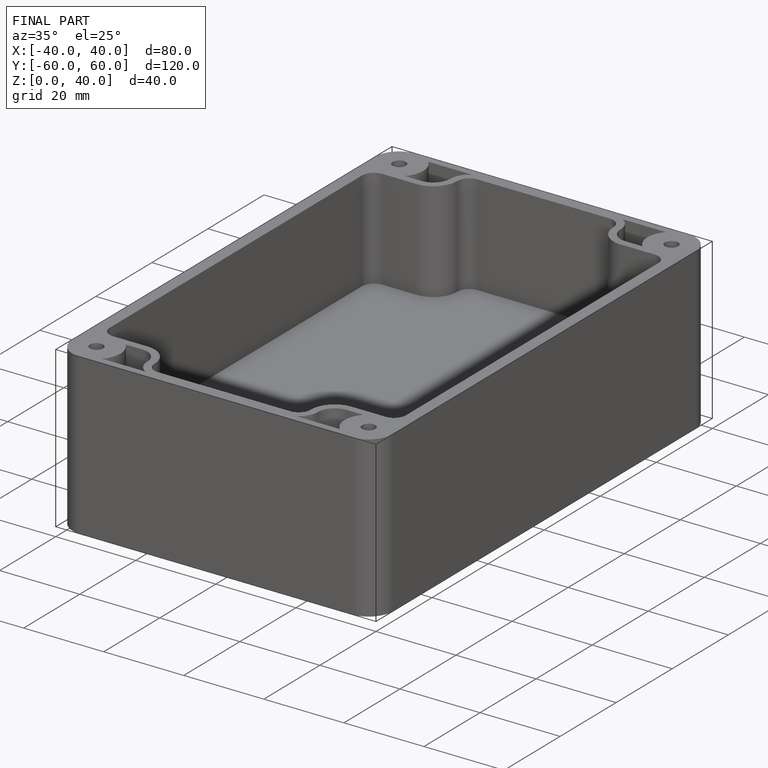
[diagram: finished part — iso view with bounding-box wireframe]
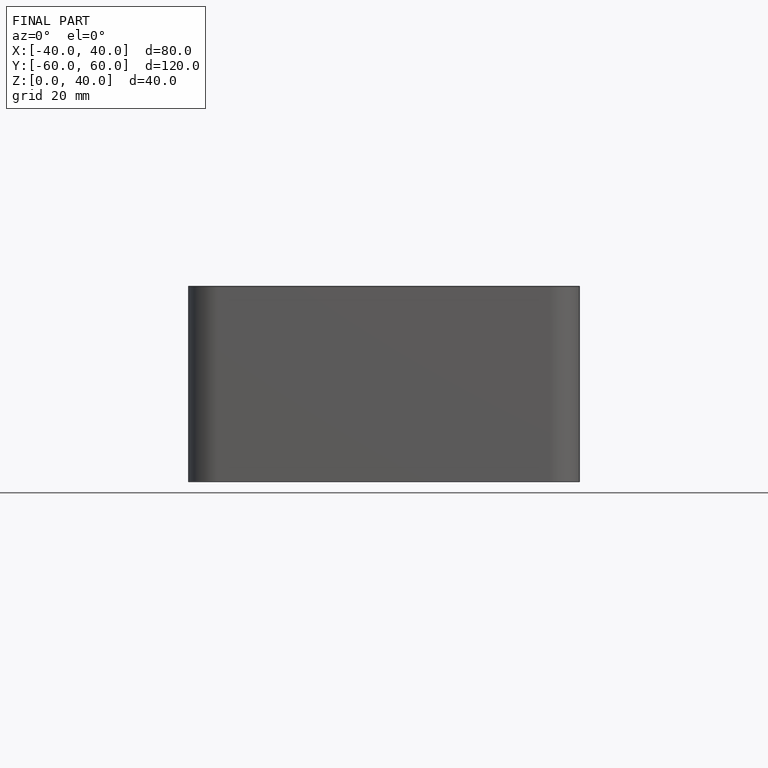
[diagram: finished part — front view with bounding-box wireframe]
